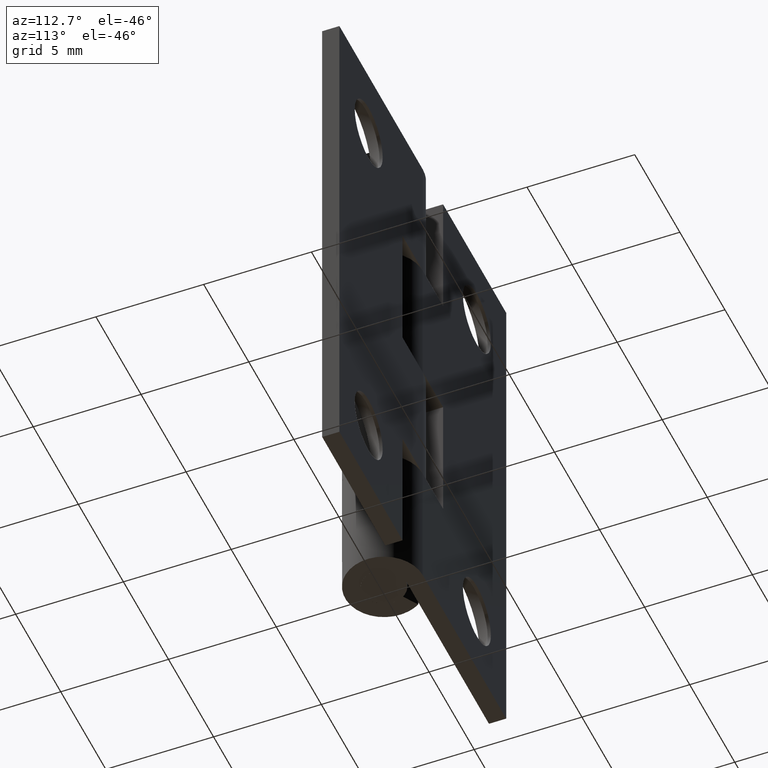
[diagram: clean part render]
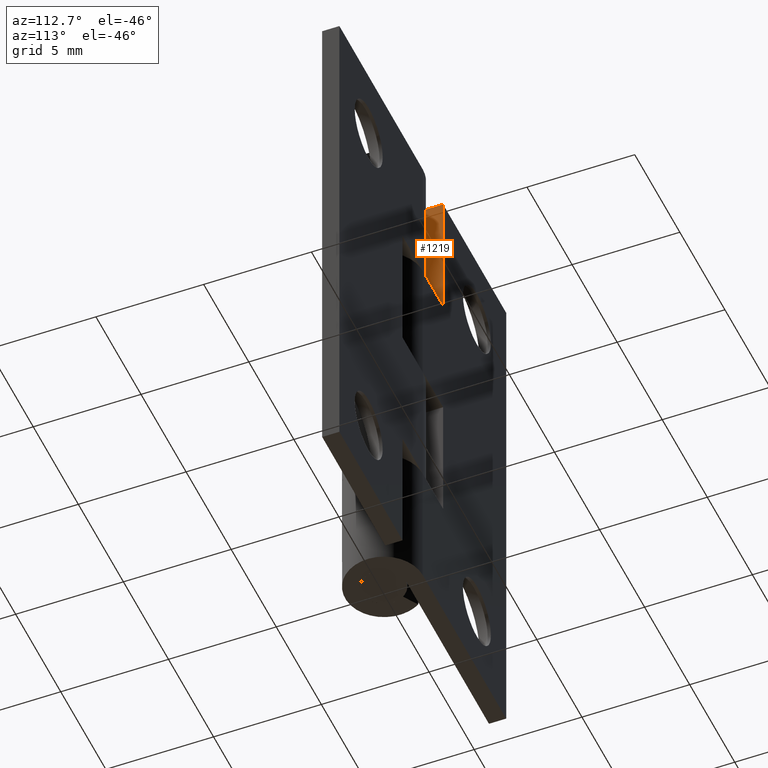
[diagram: same view with one face highlighted and labeled with its STEP entity id]
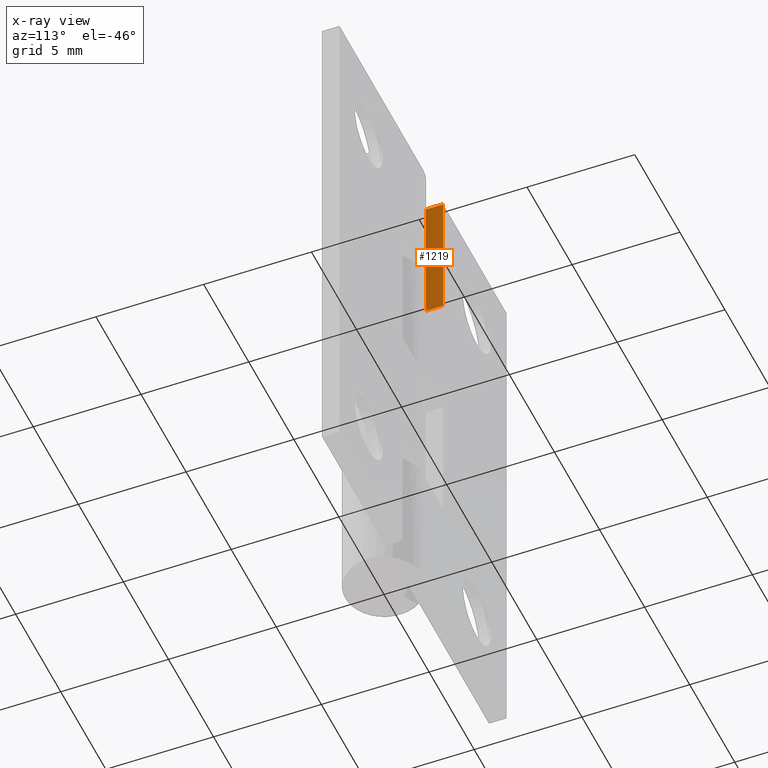
[diagram: x-ray of the same camera — body ghosted, the highlighted face saturated]
A machine part, auxiliary view. The second image highlights one B-rep face of the part: STEP entity #1219.
The next image is the same camera in x-ray: the body ghosted, the highlighted face saturated — about 0% of this face is hidden behind the body in this view.
In plain terms, the highlighted face is a freeform B-spline surface patch.
Its self-contained STEP definition (entity closure, byte-faithful):
#1124=CARTESIAN_POINT('',(-2.250000000000000,1.799998999999940,18.750000000000000));
#1125=VERTEX_POINT('',#1124);
#1131=CARTESIAN_POINT('',(-2.250000000000000,1.0,18.750000000000000));
#1132=VERTEX_POINT('',#1131);
#1133=CARTESIAN_POINT('',(-2.250000000000000,1.799998999999940,18.750000000000000));
#1134=CARTESIAN_POINT('',(-2.250000000000000,1.0,18.750000000000000));
#1135=QUASI_UNIFORM_CURVE('',1,(#1133,#1134),.UNSPECIFIED.,.F.,.U.);
#1136=EDGE_CURVE('',#1125,#1132,#1135,.T.);
#1192=CARTESIAN_POINT('',(-2.250000000000000,0.960040051500553,18.437812512113709));
#1193=CARTESIAN_POINT('',(-2.250000000000000,0.960040051500553,25.312187655524351));
#1194=CARTESIAN_POINT('',(-2.250000000000000,1.839958969957092,18.437812512113709));
#1195=CARTESIAN_POINT('',(-2.250000000000000,1.839958969957092,25.312187655524351));
#1196=B_SPLINE_SURFACE_WITH_KNOTS('',1,1,((#1192,#1194),(#1193,#1195)),.UNSPECIFIED.,.F.,.F.,.U.,(2,2),(2,2),(0.0,6.874375143410639),(0.041708334948495,0.958291687403247),.UNSPECIFIED.);
#1197=CARTESIAN_POINT('',(-2.250000000000000,1.0,25.0));
#1198=VERTEX_POINT('',#1197);
#1199=CARTESIAN_POINT('',(-2.250000000000000,1.0,25.0));
#1200=CARTESIAN_POINT('',(-2.250000000000000,1.0,18.750000000000000));
#1201=QUASI_UNIFORM_CURVE('',1,(#1199,#1200),.UNSPECIFIED.,.F.,.U.);
#1202=EDGE_CURVE('',#1198,#1132,#1201,.T.);
#1203=ORIENTED_EDGE('',*,*,#1202,.T.);
#1204=ORIENTED_EDGE('',*,*,#1136,.F.);
#1205=CARTESIAN_POINT('',(-2.250000000000000,1.799999000000000,25.0));
#1206=VERTEX_POINT('',#1205);
#1207=CARTESIAN_POINT('',(-2.250000000000000,1.799999000000000,25.0));
#1208=CARTESIAN_POINT('',(-2.250000000000000,1.799998999999940,18.750000000000000));
#1209=QUASI_UNIFORM_CURVE('',1,(#1207,#1208),.UNSPECIFIED.,.F.,.U.);
#1210=EDGE_CURVE('',#1206,#1125,#1209,.T.);
#1211=ORIENTED_EDGE('',*,*,#1210,.F.);
#1212=CARTESIAN_POINT('',(-2.250000000000000,1.799999000000000,25.0));
#1213=CARTESIAN_POINT('',(-2.250000000000000,1.0,25.0));
#1214=QUASI_UNIFORM_CURVE('',1,(#1212,#1213),.UNSPECIFIED.,.F.,.U.);
#1215=EDGE_CURVE('',#1206,#1198,#1214,.T.);
#1216=ORIENTED_EDGE('',*,*,#1215,.T.);
#1217=EDGE_LOOP('',(#1203,#1204,#1211,#1216));
#1218=FACE_OUTER_BOUND('',#1217,.T.);
#1219=ADVANCED_FACE('',(#1218),#1196,.F.);